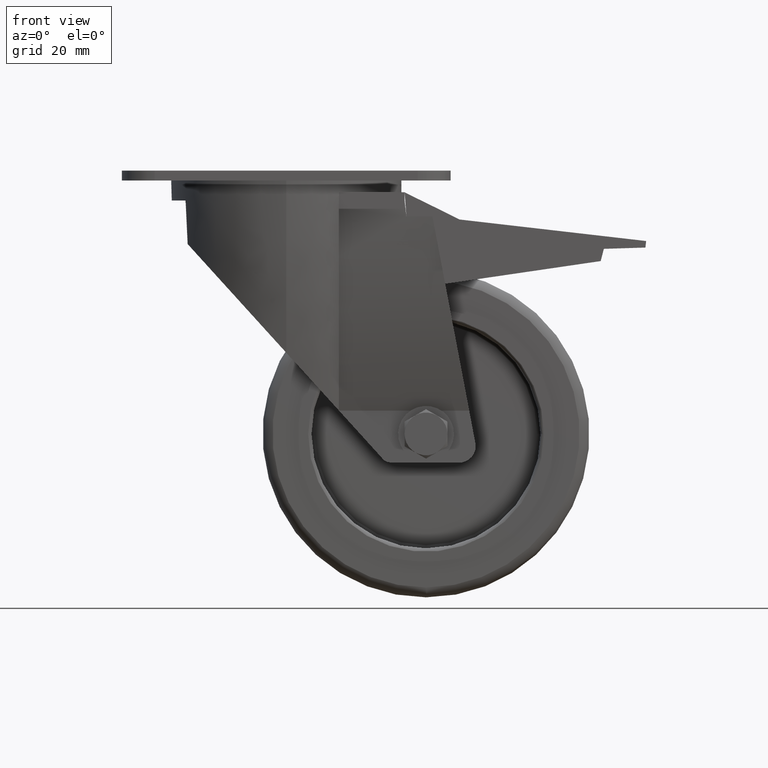
[diagram: clean part render]
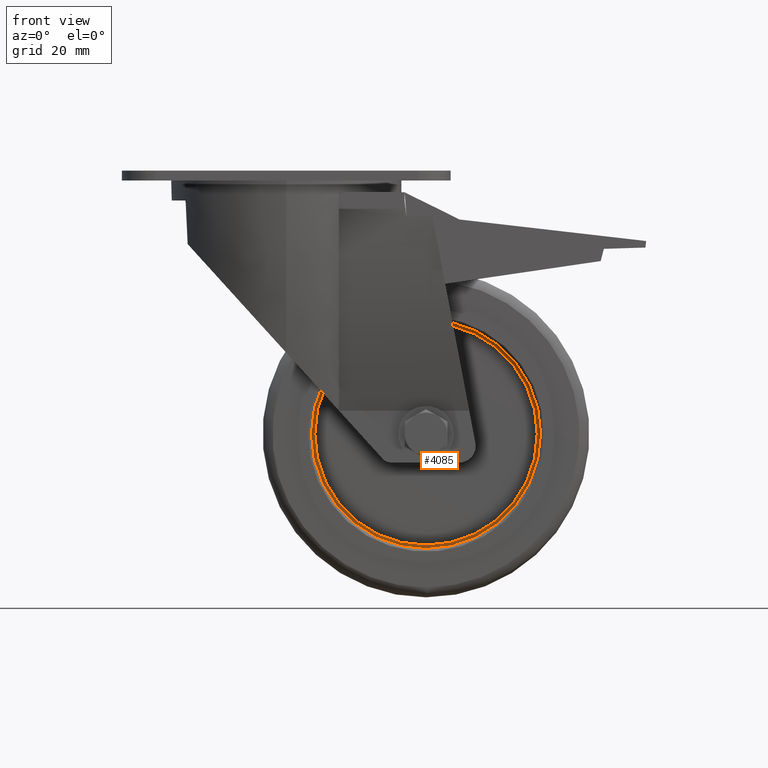
[diagram: same view with one face highlighted and labeled with its STEP entity id]
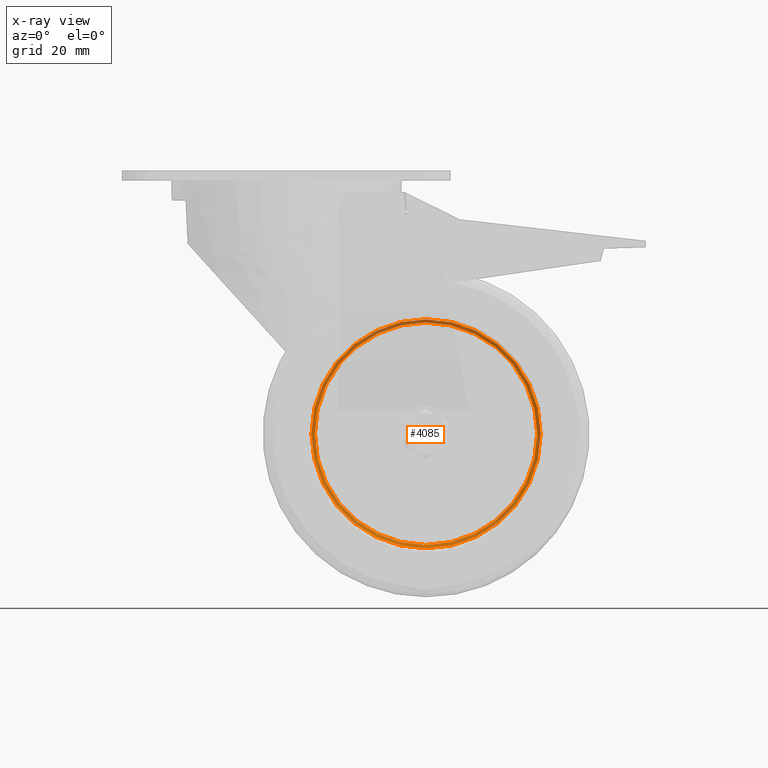
[diagram: x-ray of the same camera — body ghosted, the highlighted face saturated]
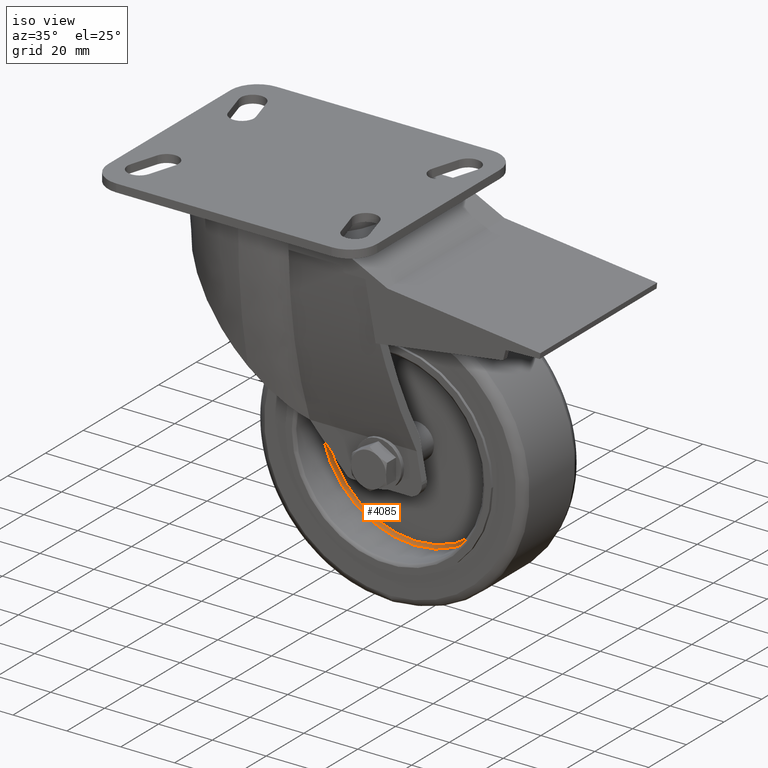
[diagram: same view with one face highlighted and labeled with its STEP entity id]
A machine part, front view. The second image highlights one B-rep face of the part: STEP entity #4085.
The next image is the same camera in x-ray: the body ghosted, the highlighted face saturated — about 15% of this face is hidden behind the body in this view.
A second angle (iso view) of the same face is appended — the face is thin or edge-on in the first view.
In plain terms, the highlighted face is a freeform B-spline surface patch.
Its self-contained STEP definition (entity closure, byte-faithful):
#3741=CARTESIAN_POINT('',(27.331678570731640,-2.000000000000412,-80.075077357231748));
#3742=VERTEX_POINT('',#3741);
#3749=CARTESIAN_POINT('',(-42.331699350669481,-2.000000000000430,-80.075077357231692));
#3750=VERTEX_POINT('',#3749);
#3751=CARTESIAN_POINT('',(-7.500010389968908,-2.000000000000412,-80.075077357231692));
#3752=DIRECTION('',(5.273559E-016,-1.0,6.123234E-017));
#3753=DIRECTION('',(1.0,5.273559E-016,-5.204170E-018));
#3754=AXIS2_PLACEMENT_3D('',#3751,#3752,#3753);
#3755=CIRCLE('',#3754,34.831688960700575);
#3756=EDGE_CURVE('',#3750,#3742,#3755,.T.);
#3758=CARTESIAN_POINT('',(-7.500010389968908,-2.000000000000412,-80.075077357231692));
#3759=DIRECTION('',(5.273559E-016,-1.0,6.123234E-017));
#3760=DIRECTION('',(1.0,5.273559E-016,-5.204170E-018));
#3761=AXIS2_PLACEMENT_3D('',#3758,#3759,#3760);
#3762=CIRCLE('',#3761,34.831688960700575);
#3763=EDGE_CURVE('',#3742,#3750,#3762,.T.);
#3776=CARTESIAN_POINT('',(26.331678570731640,-1.000000000000298,-80.075077357231748));
#3777=VERTEX_POINT('',#3776);
#3778=CARTESIAN_POINT('',(-41.331699350669595,-1.000000000000431,-80.075077357231748));
#3779=VERTEX_POINT('',#3778);
#3780=CARTESIAN_POINT('',(-7.500010389969021,-1.000000000000412,-80.075077357231748));
#3781=DIRECTION('',(5.551115E-016,-1.0,6.123234E-017));
#3782=DIRECTION('',(1.0,5.551115E-016,-4.336809E-018));
#3783=AXIS2_PLACEMENT_3D('',#3780,#3781,#3782);
#3784=CIRCLE('',#3783,33.831688960700575);
#3785=EDGE_CURVE('',#3777,#3779,#3784,.T.);
#3787=CARTESIAN_POINT('',(-7.500010389969021,-1.000000000000412,-80.075077357231748));
#3788=DIRECTION('',(5.551115E-016,-1.0,6.123234E-017));
#3789=DIRECTION('',(1.0,5.551115E-016,-4.336809E-018));
#3790=AXIS2_PLACEMENT_3D('',#3787,#3788,#3789);
#3791=CIRCLE('',#3790,33.831688960700575);
#3792=EDGE_CURVE('',#3779,#3777,#3791,.T.);
#3797=CARTESIAN_POINT('',(26.331678570731555,-1.000000000000393,-80.075077357231748));
#3798=CARTESIAN_POINT('',(26.461738785408983,-1.000000000000378,-80.075077357231748));
#3799=CARTESIAN_POINT('',(26.724706388074861,-1.052038776116136,-80.075077357231748));
#3800=CARTESIAN_POINT('',(27.057091482204576,-1.274587088527402,-80.075077357231720));
#3801=CARTESIAN_POINT('',(27.279639794615875,-1.606972182657090,-80.075077357231720));
#3802=CARTESIAN_POINT('',(27.331678570731668,-1.869939785322965,-80.075077357231706));
#3803=CARTESIAN_POINT('',(27.331678570731668,-2.000000000000394,-80.075077357231692));
#3804=CARTESIAN_POINT('',(26.331678570731555,-1.000000000000393,-77.864353754267057));
#3805=CARTESIAN_POINT('',(26.461738785408979,-1.000000000000378,-77.855855000724844));
#3806=CARTESIAN_POINT('',(26.724706388074864,-1.052038776116134,-77.838671445783092));
#3807=CARTESIAN_POINT('',(27.057091482204580,-1.274587088527400,-77.816951821506535));
#3808=CARTESIAN_POINT('',(27.279639794615878,-1.606972182657088,-77.802409455394738));
#3809=CARTESIAN_POINT('',(27.331678570731672,-1.869939785322965,-77.799008994047313));
#3810=CARTESIAN_POINT('',(27.331678570731665,-2.000000000000394,-77.799008994047298));
#3811=CARTESIAN_POINT('',(25.895492959240478,-1.000000000000393,-73.430646755535463));
#3812=CARTESIAN_POINT('',(26.023876331998025,-1.000000000000377,-73.405103364205829));
#3813=CARTESIAN_POINT('',(26.283453542753406,-1.052038776116132,-73.353457406227264));
#3814=CARTESIAN_POINT('',(26.611553258293174,-1.274587088527396,-73.288178085010088));
#3815=CARTESIAN_POINT('',(26.831232297111683,-1.606972182657087,-73.244470340502957));
#3816=CARTESIAN_POINT('',(26.882600147060938,-1.869939785322964,-73.234250098856080));
#3817=CARTESIAN_POINT('',(26.882600147060938,-2.000000000000393,-73.234250098856080));
#3818=CARTESIAN_POINT('',(23.957929709760400,-1.000000000000394,-67.045259305460434));
#3819=CARTESIAN_POINT('',(24.078864447823083,-1.000000000000378,-66.995168370450074));
#3820=CARTESIAN_POINT('',(24.323381329686182,-1.052038776116133,-66.893889950084272));
#3821=CARTESIAN_POINT('',(24.632445130589570,-1.274587088527399,-66.765876320476139));
#3822=CARTESIAN_POINT('',(24.839378680057447,-1.606972182657089,-66.680164843824315));
#3823=CARTESIAN_POINT('',(24.887766234808709,-1.869939785322966,-66.660122812070796));
#3824=CARTESIAN_POINT('',(24.887766234808712,-2.000000000000394,-66.660122812070796));
#3825=CARTESIAN_POINT('',(20.811155748379662,-1.000000000000395,-61.157819040879261));
#3826=CARTESIAN_POINT('',(20.919993245378386,-1.000000000000379,-61.085094836048960));
#3827=CARTESIAN_POINT('',(21.140050822070023,-1.052038776116134,-60.938054406756741));
#3828=CARTESIAN_POINT('',(21.418198615186373,-1.274587088527399,-60.752198634274876));
#3829=CARTESIAN_POINT('',(21.604432363486790,-1.606972182657089,-60.627758973025806));
#3830=CARTESIAN_POINT('',(21.647979655434352,-1.869939785322966,-60.598661076926334));
#3831=CARTESIAN_POINT('',(21.647979655434348,-2.000000000000395,-60.598661076926334));
#3832=CARTESIAN_POINT('',(16.577512779070890,-1.000000000000398,-55.998652758354311));
#3833=CARTESIAN_POINT('',(16.670074750656276,-1.000000000000381,-55.906095010036388));
#3834=CARTESIAN_POINT('',(16.857224985847012,-1.052038776116135,-55.718953313832927));
#3835=CARTESIAN_POINT('',(17.093778644585349,-1.274587088527400,-55.482410448181128));
#3836=CARTESIAN_POINT('',(17.252163056151076,-1.606972182657089,-55.324033263122416));
#3837=CARTESIAN_POINT('',(17.289198299619756,-1.869939785322968,-55.286999709437737));
#3838=CARTESIAN_POINT('',(17.289198299619763,-2.000000000000397,-55.286999709437737));
#3839=CARTESIAN_POINT('',(12.273906765219646,-1.000000000000399,-52.467535604192641));
#3840=CARTESIAN_POINT('',(12.349924250282395,-1.000000000000386,-52.361403072314374));
#3841=CARTESIAN_POINT('',(12.503623333873938,-1.052038776116145,-52.146814640778260));
#3842=CARTESIAN_POINT('',(12.697895494586209,-1.274587088527412,-51.875579723274342));
#3843=CARTESIAN_POINT('',(12.827970345349950,-1.606972182657099,-51.693974488191358));
#3844=CARTESIAN_POINT('',(12.858385925517018,-1.869939785322972,-51.651509487816625));
#3845=CARTESIAN_POINT('',(12.858385925517027,-2.000000000000400,-51.651509487816639));
#3846=CARTESIAN_POINT('',(8.473733178591617,-1.000000000000402,-50.190337371337236));
#3847=CARTESIAN_POINT('',(8.535141538077969,-1.000000000000387,-50.075450535428466));
#3848=CARTESIAN_POINT('',(8.659302559323569,-1.052038776116146,-49.843161853668818));
#3849=CARTESIAN_POINT('',(8.816239278202952,-1.274587088527411,-49.549554220754246));
#3850=CARTESIAN_POINT('',(8.921316198193690,-1.606972182657098,-49.352969342640804));
#3851=CARTESIAN_POINT('',(8.945886478035805,-1.869939785322973,-49.307001631859045));
#3852=CARTESIAN_POINT('',(8.945886478035813,-2.000000000000401,-49.307001631859052));
#3853=CARTESIAN_POINT('',(4.468916587575285,-1.000000000000403,-48.295741230194110));
#3854=CARTESIAN_POINT('',(4.514929106015206,-1.000000000000392,-48.173570939382152));
#3855=CARTESIAN_POINT('',(4.607961411834288,-1.052038776116154,-47.926555904296336));
#3856=CARTESIAN_POINT('',(4.725552139411749,-1.274587088527422,-47.614334494297076));
#3857=CARTESIAN_POINT('',(4.804284966002868,-1.606972182657107,-47.405286768869111));
#3858=CARTESIAN_POINT('',(4.822695170472849,-1.869939785322977,-47.356404853462955));
#3859=CARTESIAN_POINT('',(4.822695170472859,-2.000000000000404,-47.356404853462962));
#3860=CARTESIAN_POINT('',(-0.857137567663901,-1.000000000000406,-46.679100625331856));
#3861=CARTESIAN_POINT('',(-0.831600164954051,-1.000000000000395,-46.550715432734492));
#3862=CARTESIAN_POINT('',(-0.779966315313106,-1.052038776116157,-46.291134542461059));
#3863=CARTESIAN_POINT('',(-0.714702298760485,-1.274587088527427,-45.963030176093781));
#3864=CARTESIAN_POINT('',(-0.671004801485512,-1.606972182657109,-45.743348023315491));
#3865=CARTESIAN_POINT('',(-0.660786955962989,-1.869939785322980,-45.691979445224803));
#3866=CARTESIAN_POINT('',(-0.660786955962976,-2.000000000000406,-45.691979445224788));
#3867=CARTESIAN_POINT('',(-6.396431786916027,-1.000000000000410,-46.134489471185333));
#3868=CARTESIAN_POINT('',(-6.392189265350130,-1.000000000000402,-46.004010612980387));
#3869=CARTESIAN_POINT('',(-6.383611348358297,-1.052038776116171,-45.740196558653054));
#3870=CARTESIAN_POINT('',(-6.372769055551626,-1.274587088527438,-45.406741568793521));
#3871=CARTESIAN_POINT('',(-6.365509602557449,-1.606972182657120,-45.183476908106329));
#3872=CARTESIAN_POINT('',(-6.363812114740089,-1.869939785322985,-45.131270627293901));
#3873=CARTESIAN_POINT('',(-6.363812114740074,-2.000000000000409,-45.131270627293901));
#3874=CARTESIAN_POINT('',(-10.821429973856077,-1.000000000000412,-46.352290053283014));
#3875=CARTESIAN_POINT('',(-10.834198610521423,-1.000000000000405,-46.222648492633546));
#3876=CARTESIAN_POINT('',(-10.860015404546592,-1.052038776116175,-45.960527362859864));
#3877=CARTESIAN_POINT('',(-10.892647247500577,-1.274587088527445,-45.629212191295132));
#3878=CARTESIAN_POINT('',(-10.914495885446531,-1.606972182657123,-45.407380245127285));
#3879=CARTESIAN_POINT('',(-10.919604782324612,-1.869939785322988,-45.355508977909466));
#3880=CARTESIAN_POINT('',(-10.919604782324598,-2.000000000000411,-45.355508977909466));
#3881=CARTESIAN_POINT('',(-15.203780426286933,-1.000000000000414,-47.001887801242759));
#3882=CARTESIAN_POINT('',(-15.233396269170591,-1.000000000000410,-46.874743509430559));
#3883=CARTESIAN_POINT('',(-15.293276281081686,-1.052038776116185,-46.617671585526452));
#3884=CARTESIAN_POINT('',(-15.368963259986245,-1.274587088527454,-46.292738495827443));
#3885=CARTESIAN_POINT('',(-15.419639447710056,-1.606972182657131,-46.075179670127270));
#3886=CARTESIAN_POINT('',(-15.431489129960088,-1.869939785322992,-46.024307592509764));
#3887=CARTESIAN_POINT('',(-15.431489129960070,-2.000000000000413,-46.024307592509771));
#3888=CARTESIAN_POINT('',(-20.531080041557800,-1.000000000000418,-48.617262374996663));
#3889=CARTESIAN_POINT('',(-20.581175788132285,-1.000000000000417,-48.496328117927064));
#3890=CARTESIAN_POINT('',(-20.682463936957205,-1.052038776116194,-48.251812208579672));
#3891=CARTESIAN_POINT('',(-20.810489863117269,-1.274587088527468,-47.942749636914037));
#3892=CARTESIAN_POINT('',(-20.896209572920757,-1.606972182657140,-47.735816910481887));
#3893=CARTESIAN_POINT('',(-20.916253529843367,-1.869939785322998,-47.687429548182180));
#3894=CARTESIAN_POINT('',(-20.916253529843353,-2.000000000000417,-47.687429548182166));
#3895=CARTESIAN_POINT('',(-26.416841238218911,-1.000000000000421,-51.763704430534020));
#3896=CARTESIAN_POINT('',(-26.489563799720287,-1.000000000000422,-51.654866138572409));
#3897=CARTESIAN_POINT('',(-26.636600906380199,-1.052038776116204,-51.434806954552329));
#3898=CARTESIAN_POINT('',(-26.822452479130021,-1.274587088527477,-51.156657129809233));
#3899=CARTESIAN_POINT('',(-26.946889328450119,-1.606972182657148,-50.970422021233922));
#3900=CARTESIAN_POINT('',(-26.975986567032393,-1.869939785323002,-50.926874411211386));
#3901=CARTESIAN_POINT('',(-26.975986567032386,-2.000000000000420,-50.926874411211394));
#3902=CARTESIAN_POINT('',(-31.576893261439363,-1.000000000000424,-55.998256224093680));
#3903=CARTESIAN_POINT('',(-31.669452771508865,-1.000000000000429,-55.905696951366778));
#3904=CARTESIAN_POINT('',(-31.856598029782297,-1.052038776116217,-55.718552172974213));
#3905=CARTESIAN_POINT('',(-32.093145397809892,-1.274587088527491,-55.482005411505170));
#3906=CARTESIAN_POINT('',(-32.251525597432583,-1.606972182657158,-55.323625618003518));
#3907=CARTESIAN_POINT('',(-32.288559856016860,-1.869939785323008,-55.286591454383029));
#3908=CARTESIAN_POINT('',(-32.288559856016846,-2.000000000000423,-55.286591454383014));
#3909=CARTESIAN_POINT('',(-35.811348154470366,-1.000000000000426,-61.158034717849077));
#3910=CARTESIAN_POINT('',(-35.920186311256842,-1.000000000000434,-61.085311342152472));
#3911=CARTESIAN_POINT('',(-36.140245221967504,-1.052038776116225,-60.938272589278384));
#3912=CARTESIAN_POINT('',(-36.418394701253632,-1.274587088527502,-60.752418935751017));
#3913=CARTESIAN_POINT('',(-36.604629578528417,-1.606972182657166,-60.627980693247160));
#3914=CARTESIAN_POINT('',(-36.648177134465570,-1.869939785323012,-60.598883128894776));
#3915=CARTESIAN_POINT('',(-36.648177134465563,-2.000000000000425,-60.598883128894755));
#3916=CARTESIAN_POINT('',(-38.957904282657331,-1.000000000000429,-67.044793131841729));
#3917=CARTESIAN_POINT('',(-39.078838843084824,-1.000000000000439,-66.994700404705611));
#3918=CARTESIAN_POINT('',(-39.323355365788906,-1.052038776116234,-66.893418360856558));
#3919=CARTESIAN_POINT('',(-39.632418712723407,-1.274587088527511,-66.765400151247690));
#3920=CARTESIAN_POINT('',(-39.839351958236556,-1.606972182657173,-66.679685608058037));
#3921=CARTESIAN_POINT('',(-39.887739441913688,-1.869939785323015,-66.659642859251775));
#3922=CARTESIAN_POINT('',(-39.887739441913681,-2.000000000000428,-66.659642859251761));
#3923=CARTESIAN_POINT('',(-40.895526941190255,-1.000000000000430,-73.432295773040380));
#3924=CARTESIAN_POINT('',(-41.023910364700697,-1.000000000000443,-73.406758721080053));
#3925=CARTESIAN_POINT('',(-41.283487678072873,-1.052038776116242,-73.355125580616502));
#3926=CARTESIAN_POINT('',(-41.611587523317937,-1.274587088527521,-73.289862460447964));
#3927=CARTESIAN_POINT('',(-41.831266648980588,-1.606972182657178,-73.246165563346764));
#3928=CARTESIAN_POINT('',(-41.882634519236696,-1.869939785323019,-73.235947858163627));
#3929=CARTESIAN_POINT('',(-41.882634519236696,-2.000000000000430,-73.235947858163627));
#3930=CARTESIAN_POINT('',(-41.549785555409265,-1.000000000000431,-80.075077357231748));
#3931=CARTESIAN_POINT('',(-41.680684165670144,-1.000000000000446,-80.075077357231734));
#3932=CARTESIAN_POINT('',(-41.945346912982821,-1.052038776116248,-80.075077357231748));
#3933=CARTESIAN_POINT('',(-42.279874631554726,-1.274587088527527,-80.075077357231720));
#3934=CARTESIAN_POINT('',(-42.503857537340288,-1.606972182657184,-80.075077357231692));
#3935=CARTESIAN_POINT('',(-42.556231766385871,-1.869939785323020,-80.075077357231706));
#3936=CARTESIAN_POINT('',(-42.556231766385871,-2.000000000000430,-80.075077357231677));
#3937=CARTESIAN_POINT('',(-40.895526941190255,-1.000000000000431,-86.717858941423103));
#3938=CARTESIAN_POINT('',(-41.023910364700697,-1.000000000000447,-86.743395993383444));
#3939=CARTESIAN_POINT('',(-41.283487678072859,-1.052038776116250,-86.795029133846967));
#3940=CARTESIAN_POINT('',(-41.611587523317930,-1.274587088527529,-86.860292254015434));
#3941=CARTESIAN_POINT('',(-41.831266648980566,-1.606972182657185,-86.903989151116718));
#3942=CARTESIAN_POINT('',(-41.882634519236703,-1.869939785323022,-86.914206856299785));
#3943=CARTESIAN_POINT('',(-41.882634519236703,-2.000000000000431,-86.914206856299785));
#3944=CARTESIAN_POINT('',(-38.957904282657346,-1.000000000000430,-93.105361582621754));
#3945=CARTESIAN_POINT('',(-39.078838843084846,-1.000000000000447,-93.155454309757857));
#3946=CARTESIAN_POINT('',(-39.323355365788913,-1.052038776116252,-93.256736353606939));
#3947=CARTESIAN_POINT('',(-39.632418712723393,-1.274587088527533,-93.384754563215722));
#3948=CARTESIAN_POINT('',(-39.839351958236577,-1.606972182657188,-93.470469106405361));
#3949=CARTESIAN_POINT('',(-39.887739441913695,-1.869939785323021,-93.490511855211565));
#3950=CARTESIAN_POINT('',(-39.887739441913695,-2.000000000000430,-93.490511855211565));
#3951=CARTESIAN_POINT('',(-35.811348154470359,-1.000000000000429,-98.992119996614392));
#3952=CARTESIAN_POINT('',(-35.920186311256835,-1.000000000000445,-99.064843372310989));
#3953=CARTESIAN_POINT('',(-36.140245221967504,-1.052038776116250,-99.211882125185070));
#3954=CARTESIAN_POINT('',(-36.418394701253618,-1.274587088527531,-99.397735778712416));
#3955=CARTESIAN_POINT('',(-36.604629578528396,-1.606972182657185,-99.522174021216216));
#3956=CARTESIAN_POINT('',(-36.648177134465556,-1.869939785323020,-99.551271585568600));
#3957=CARTESIAN_POINT('',(-36.648177134465563,-2.000000000000428,-99.551271585568600));
#3958=CARTESIAN_POINT('',(-31.576893261439373,-1.000000000000427,-104.151898490369820));
#3959=CARTESIAN_POINT('',(-31.669452771508876,-1.000000000000442,-104.244457763096700));
#3960=CARTESIAN_POINT('',(-31.856598029782287,-1.052038776116245,-104.431602541489270));
#3961=CARTESIAN_POINT('',(-32.093145397809863,-1.274587088527525,-104.668149302958230));
#3962=CARTESIAN_POINT('',(-32.251525597432561,-1.606972182657181,-104.826529096459940));
#3963=CARTESIAN_POINT('',(-32.288559856016860,-1.869939785323017,-104.863563260080380));
#3964=CARTESIAN_POINT('',(-32.288559856016846,-2.000000000000427,-104.863563260080380));
#3965=CARTESIAN_POINT('',(-26.416841238218929,-1.000000000000424,-108.386450283929460));
#3966=CARTESIAN_POINT('',(-26.489563799720290,-1.000000000000439,-108.495288575891070));
#3967=CARTESIAN_POINT('',(-26.636600906380206,-1.052038776116241,-108.715347759911100));
#3968=CARTESIAN_POINT('',(-26.822452479130042,-1.274587088527521,-108.993497584654120));
#3969=CARTESIAN_POINT('',(-26.946889328450123,-1.606972182657178,-109.179732693229450));
#3970=CARTESIAN_POINT('',(-26.975986567032407,-1.869939785323015,-109.223280303251940));
#3971=CARTESIAN_POINT('',(-26.975986567032404,-2.000000000000424,-109.223280303251940));
#3972=CARTESIAN_POINT('',(-20.531080041557807,-1.000000000000421,-111.532892339466830));
#3973=CARTESIAN_POINT('',(-20.581175788132288,-1.000000000000434,-111.653826596536430));
#3974=CARTESIAN_POINT('',(-20.682463936957198,-1.052038776116232,-111.898342505883790));
#3975=CARTESIAN_POINT('',(-20.810489863117251,-1.274587088527513,-112.207405077549380));
#3976=CARTESIAN_POINT('',(-20.896209572920760,-1.606972182657171,-112.414337803981510));
#3977=CARTESIAN_POINT('',(-20.916253529843370,-1.869939785323010,-112.462725166281220));
#3978=CARTESIAN_POINT('',(-20.916253529843356,-2.000000000000421,-112.462725166281220));
#3979=CARTESIAN_POINT('',(-15.203780426286942,-1.000000000000418,-113.148266913220740));
#3980=CARTESIAN_POINT('',(-15.233396269170605,-1.000000000000430,-113.275411205032940));
#3981=CARTESIAN_POINT('',(-15.293276281081697,-1.052038776116229,-113.532483128937100));
#3982=CARTESIAN_POINT('',(-15.368963259986259,-1.274587088527509,-113.857416218635890));
#3983=CARTESIAN_POINT('',(-15.419639447710061,-1.606972182657169,-114.074975044336160));
#3984=CARTESIAN_POINT('',(-15.431489129960099,-1.869939785323008,-114.125847121953600));
#3985=CARTESIAN_POINT('',(-15.431489129960092,-2.000000000000418,-114.125847121953600));
#3986=CARTESIAN_POINT('',(-10.821429973856080,-1.000000000000416,-113.797864661180500));
#3987=CARTESIAN_POINT('',(-10.834198610521424,-1.000000000000423,-113.927506221829940));
#3988=CARTESIAN_POINT('',(-10.860015404546591,-1.052038776116214,-114.189627351603520));
#3989=CARTESIAN_POINT('',(-10.892647247500566,-1.274587088527487,-114.520942523168320));
#3990=CARTESIAN_POINT('',(-10.914495885446531,-1.606972182657152,-114.742774469336110));
#3991=CARTESIAN_POINT('',(-10.919604782324610,-1.869939785323000,-114.794645736553950));
#3992=CARTESIAN_POINT('',(-10.919604782324594,-2.000000000000416,-114.794645736553950));
#3993=CARTESIAN_POINT('',(-6.396431786916041,-1.000000000000413,-114.015665243278140));
#3994=CARTESIAN_POINT('',(-6.392189265350144,-1.000000000000421,-114.146144101483100));
#3995=CARTESIAN_POINT('',(-6.383611348358313,-1.052038776116212,-114.409958155810500));
#3996=CARTESIAN_POINT('',(-6.372769055551647,-1.274587088527490,-114.743413145669820));
#3997=CARTESIAN_POINT('',(-6.365509602557462,-1.606972182657154,-114.966677806357140));
#3998=CARTESIAN_POINT('',(-6.363812114740104,-1.869939785323000,-115.018884087169470));
#3999=CARTESIAN_POINT('',(-6.363812114740090,-2.000000000000413,-115.018884087169470));
#4000=CARTESIAN_POINT('',(-0.857137567663911,-1.000000000000410,-113.471054089131660));
#4001=CARTESIAN_POINT('',(-0.831600164954062,-1.000000000000416,-113.599439281728980));
#4002=CARTESIAN_POINT('',(-0.779966315313121,-1.052038776116203,-113.859020172002370));
#4003=CARTESIAN_POINT('',(-0.714702298760501,-1.274587088527479,-114.187124538369570));
#4004=CARTESIAN_POINT('',(-0.671004801485528,-1.606972182657147,-114.406806691147850));
#4005=CARTESIAN_POINT('',(-0.660786955963002,-1.869939785322995,-114.458175269238610));
#4006=CARTESIAN_POINT('',(-0.660786955962986,-2.000000000000410,-114.458175269238590));
#4007=CARTESIAN_POINT('',(4.468916587575300,-1.000000000000407,-111.854413484269360));
#4008=CARTESIAN_POINT('',(4.514929106015217,-1.000000000000408,-111.976583775081310));
#4009=CARTESIAN_POINT('',(4.607961411834296,-1.052038776116189,-112.223598810167050));
#4010=CARTESIAN_POINT('',(4.725552139411749,-1.274587088527463,-112.535820220166340));
#4011=CARTESIAN_POINT('',(4.804284966002871,-1.606972182657132,-112.744867945594280));
#4012=CARTESIAN_POINT('',(4.822695170472861,-1.869939785322988,-112.793749861000350));
#4013=CARTESIAN_POINT('',(4.822695170472876,-2.000000000000407,-112.793749861000380));
#4014=CARTESIAN_POINT('',(8.473733178591608,-1.000000000000405,-109.959817343126280));
#4015=CARTESIAN_POINT('',(8.535141538077955,-1.000000000000404,-110.074704179035050));
#4016=CARTESIAN_POINT('',(8.659302559323542,-1.052038776116181,-110.306992860794720));
#4017=CARTESIAN_POINT('',(8.816239278202923,-1.274587088527453,-110.600600493709150));
#4018=CARTESIAN_POINT('',(8.921316198193662,-1.606972182657127,-110.797185371822620));
#4019=CARTESIAN_POINT('',(8.945886478035789,-1.869939785322985,-110.843153082604390));
#4020=CARTESIAN_POINT('',(8.945886478035803,-2.000000000000405,-110.843153082604360));
#4021=CARTESIAN_POINT('',(12.273906765219644,-1.000000000000403,-107.682619110270850));
#4022=CARTESIAN_POINT('',(12.349924250282386,-1.000000000000400,-107.788751642149050));
#4023=CARTESIAN_POINT('',(12.503623333873918,-1.052038776116174,-108.003340073685100));
#4024=CARTESIAN_POINT('',(12.697895494586186,-1.274587088527444,-108.274574991189110));
#4025=CARTESIAN_POINT('',(12.827970345349932,-1.606972182657119,-108.456180226272040));
#4026=CARTESIAN_POINT('',(12.858385925517011,-1.869939785322982,-108.498645226646720));
#4027=CARTESIAN_POINT('',(12.858385925517027,-2.000000000000402,-108.498645226646720));
#4028=CARTESIAN_POINT('',(16.577512779070851,-1.000000000000400,-104.151501956109230));
#4029=CARTESIAN_POINT('',(16.670074750656234,-1.000000000000396,-104.244059704427170));
#4030=CARTESIAN_POINT('',(16.857224985846955,-1.052038776116169,-104.431201400630610));
#4031=CARTESIAN_POINT('',(17.093778644585299,-1.274587088527442,-104.667744266282280));
#4032=CARTESIAN_POINT('',(17.252163056151009,-1.606972182657120,-104.826121451341050));
#4033=CARTESIAN_POINT('',(17.289198299619706,-1.869939785322980,-104.863155005025720));
#4034=CARTESIAN_POINT('',(17.289198299619720,-2.000000000000400,-104.863155005025690));
#4035=CARTESIAN_POINT('',(20.811155748379676,-1.000000000000397,-98.992335673584194));
#4036=CARTESIAN_POINT('',(20.919993245378397,-1.000000000000390,-99.065059878414516));
#4037=CARTESIAN_POINT('',(21.140050822070044,-1.052038776116157,-99.212100307706692));
#4038=CARTESIAN_POINT('',(21.418198615186348,-1.274587088527428,-99.397956080188578));
#4039=CARTESIAN_POINT('',(21.604432363486801,-1.606972182657108,-99.522395741437549));
#4040=CARTESIAN_POINT('',(21.647979655434362,-1.869939785322973,-99.551493637537021));
#4041=CARTESIAN_POINT('',(21.647979655434362,-2.000000000000397,-99.551493637537007));
#4042=CARTESIAN_POINT('',(23.957929709760386,-1.000000000000395,-93.104895409003092));
#4043=CARTESIAN_POINT('',(24.078864447823072,-1.000000000000384,-93.154986344013423));
#4044=CARTESIAN_POINT('',(24.323381329686136,-1.052038776116146,-93.256264764379239));
#4045=CARTESIAN_POINT('',(24.632445130589566,-1.274587088527412,-93.384278393987287));
#4046=CARTESIAN_POINT('',(24.839378680057422,-1.606972182657098,-93.469989870639125));
#4047=CARTESIAN_POINT('',(24.887766234808701,-1.869939785322970,-93.490031902392644));
#4048=CARTESIAN_POINT('',(24.887766234808709,-2.000000000000396,-93.490031902392616));
#4049=CARTESIAN_POINT('',(25.895492959240471,-1.000000000000394,-86.719507958928105));
#4050=CARTESIAN_POINT('',(26.023876331998004,-1.000000000000382,-86.745051350257739));
#4051=CARTESIAN_POINT('',(26.283453542753410,-1.052038776116144,-86.796697308236304));
#4052=CARTESIAN_POINT('',(26.611553258293149,-1.274587088527412,-86.861976629453324));
#4053=CARTESIAN_POINT('',(26.831232297111651,-1.606972182657097,-86.905684373960568));
#4054=CARTESIAN_POINT('',(26.882600147060916,-1.869939785322967,-86.915904615607374));
#4055=CARTESIAN_POINT('',(26.882600147060913,-2.000000000000394,-86.915904615607360));
#4056=CARTESIAN_POINT('',(26.331678570731555,-1.000000000000393,-82.285800960196454));
#4057=CARTESIAN_POINT('',(26.461738785408986,-1.000000000000379,-82.294299713738667));
#4058=CARTESIAN_POINT('',(26.724706388074857,-1.052038776116137,-82.311483268680433));
#4059=CARTESIAN_POINT('',(27.057091482204573,-1.274587088527404,-82.333202892956891));
#4060=CARTESIAN_POINT('',(27.279639794615871,-1.606972182657091,-82.347745259068731));
#4061=CARTESIAN_POINT('',(27.331678570731665,-1.869939785322966,-82.351145720416113));
#4062=CARTESIAN_POINT('',(27.331678570731672,-2.000000000000394,-82.351145720416099));
#4063=CARTESIAN_POINT('',(26.331678570731555,-1.000000000000393,-80.075077357231763));
#4064=CARTESIAN_POINT('',(26.461738785408983,-1.000000000000378,-80.075077357231763));
#4065=CARTESIAN_POINT('',(26.724706388074861,-1.052038776116136,-80.075077357231763));
#4066=CARTESIAN_POINT('',(27.057091482204576,-1.274587088527402,-80.075077357231720));
#4067=CARTESIAN_POINT('',(27.279639794615875,-1.606972182657090,-80.075077357231748));
#4068=CARTESIAN_POINT('',(27.331678570731668,-1.869939785322965,-80.075077357231720));
#4069=CARTESIAN_POINT('',(27.331678570731668,-2.000000000000394,-80.075077357231706));
#4070=B_SPLINE_SURFACE_WITH_KNOTS('',3,3,((#3797,#3804,#3811,#3818,#3825,#3832,#3839,#3846,#3853,#3860,#3867,#3874,#3881,#3888,#3895,#3902,#3909,#3916,#3923,#3930,#3937,#3944,#3951,#3958,#3965,#3972,#3979,#3986,#3993,#4000,#4007,#4014,#4021,#4028,#4035,#4042,#4049,#4056,#4063),(#3798,#3805,#3812,#3819,#3826,#3833,#3840,#3847,#3854,#3861,#3868,#3875,#3882,#3889,#3896,#3903,#3910,#3917,#3924,#3931,#3938,#3945,#3952,#3959,#3966,#3973,#3980,#3987,#3994,#4001,#4008,#4015,#4022,#4029,#4036,#4043,#4050,#4057,#4064),(#3799,#3806,#3813,#3820,#3827,#3834,#3841,#3848,#3855,#3862,#3869,#3876,#3883,#3890,#3897,#3904,#3911,#3918,#3925,#3932,#3939,#3946,#3953,#3960,#3967,#3974,#3981,#3988,#3995,#4002,#4009,#4016,#4023,#4030,#4037,#4044,#4051,#4058,#4065),(#3800,#3807,#3814,#3821,#3828,#3835,#3842,#3849,#3856,#3863,#3870,#3877,#3884,#3891,#3898,#3905,#3912,#3919,#3926,#3933,#3940,#3947,#3954,#3961,#3968,#3975,#3982,#3989,#3996,#4003,#4010,#4017,#4024,#4031,#4038,#4045,#4052,#4059,#4066),(#3801,#3808,#3815,#3822,#3829,#3836,#3843,#3850,#3857,#3864,#3871,#3878,#3885,#3892,#3899,#3906,#3913,#3920,#3927,#3934,#3941,#3948,#3955,#3962,#3969,#3976,#3983,#3990,#3997,#4004,#4011,#4018,#4025,#4032,#4039,#4046,#4053,#4060,#4067),(#3802,#3809,#3816,#3823,#3830,#3837,#3844,#3851,#3858,#3865,#3872,#3879,#3886,#3893,#3900,#3907,#3914,#3921,#3928,#3935,#3942,#3949,#3956,#3963,#3970,#3977,#3984,#3991,#3998,#4005,#4012,#4019,#4026,#4033,#4040,#4047,#4054,#4061,#4068),(#3803,#3810,#3817,#3824,#3831,#3838,#3845,#3852,#3859,#3866,#3873,#3880,#3887,#3894,#3901,#3908,#3915,#3922,#3929,#3936,#3943,#3950,#3957,#3964,#3971,#3978,#3985,#3992,#3999,#4006,#4013,#4020,#4027,#4034,#4041,#4048,#4055,#4062,#4069)),.UNSPECIFIED.,.F.,.T.,.U.,(4,1,1,1,4),(4,1,1,1,1,1,1,1,1,1,1,1,1,1,1,1,1,1,1,1,1,1,1,1,1,1,1,1,1,1,1,1,1,1,1,1,4),(0.0,0.390180644032261,0.780361288064524,1.170541932096786,1.560722576129048),(0.0,6.750327325056792,13.500654650113589,20.250981975170379,27.001309300227170,33.751636625283965,37.130870723276367,40.510104821268769,47.260432146325570,54.010759471382357,57.389993569374759,60.769227667367161,67.519554992423949,74.269882317480736,81.020209642537523,87.770536967594310,94.520864292651098,101.271191617707880,108.021518942764670,114.771846267821460,121.522173592878250,128.272500917935020,135.022828242991810,141.773155568048590,148.523482893105350,155.273810218162140,158.653044316154560,162.032278414146960,168.782605739203750,175.532933064260530,178.912167162252930,182.291401260245320,189.041728585302140,195.792055910358900,202.542383235415680,209.292710560472500,216.043037885529260),.UNSPECIFIED.);
#4071=ORIENTED_EDGE('',*,*,#3792,.F.);
#4072=ORIENTED_EDGE('',*,*,#3785,.F.);
#4073=CARTESIAN_POINT('',(26.331678570731583,-2.000000000000412,-80.075077357231748));
#4074=DIRECTION('',(6.938894E-018,-6.123234E-017,-1.0));
#4075=DIRECTION('',(0.0,1.0,-6.123234E-017));
#4076=AXIS2_PLACEMENT_3D('',#4073,#4074,#4075);
#4077=CIRCLE('',#4076,1.000000000000001);
#4078=EDGE_CURVE('',#3777,#3742,#4077,.T.);
#4079=ORIENTED_EDGE('',*,*,#4078,.T.);
#4080=ORIENTED_EDGE('',*,*,#3763,.T.);
#4081=ORIENTED_EDGE('',*,*,#3756,.T.);
#4082=ORIENTED_EDGE('',*,*,#4078,.F.);
#4083=EDGE_LOOP('',(#4071,#4072,#4079,#4080,#4081,#4082));
#4084=FACE_OUTER_BOUND('',#4083,.T.);
#4085=ADVANCED_FACE('',(#4084),#4070,.T.);